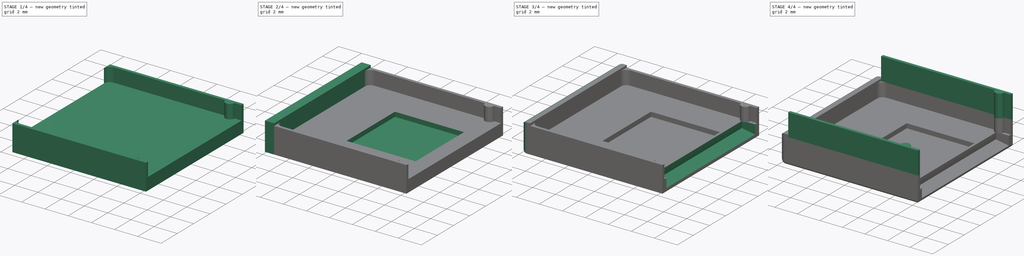
[diagram: build sequence overview — one tinted view per stage of 4, left to right]
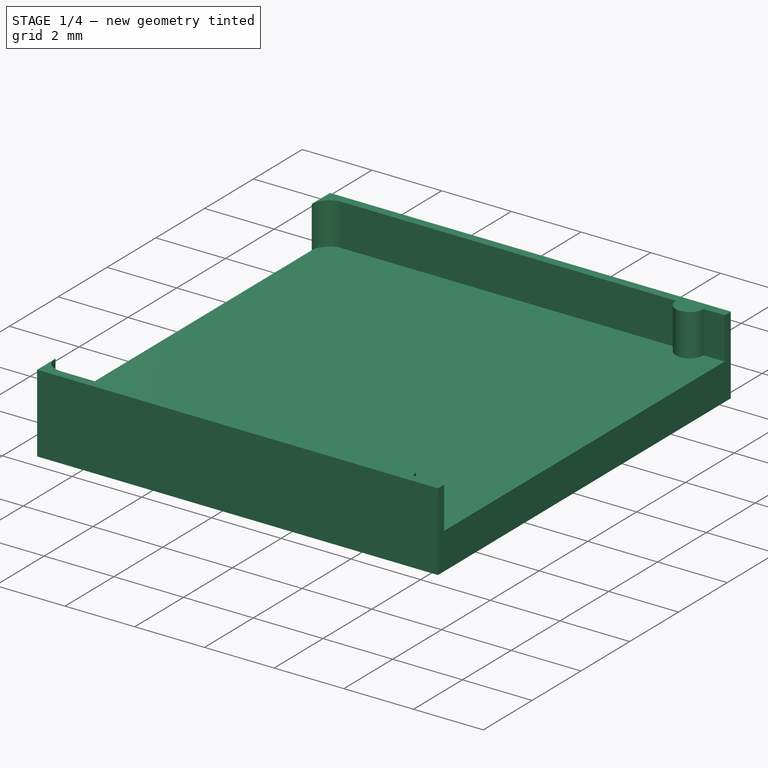
[diagram: stage 1 of 4 — iso view after this stage's code; geometry added in this stage tinted green]
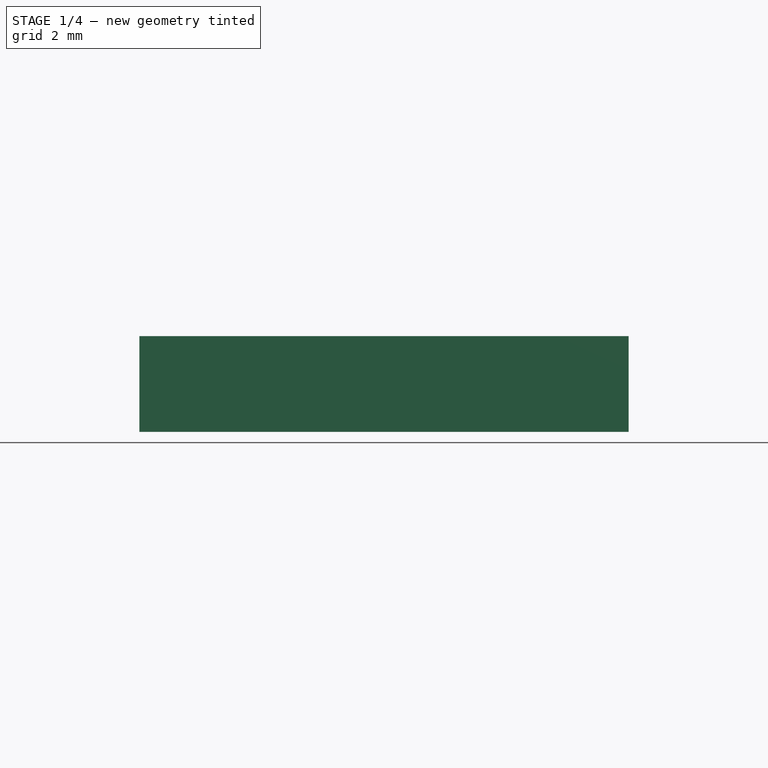
[diagram: stage 1 of 4 — front view after this stage's code; geometry added in this stage tinted green]
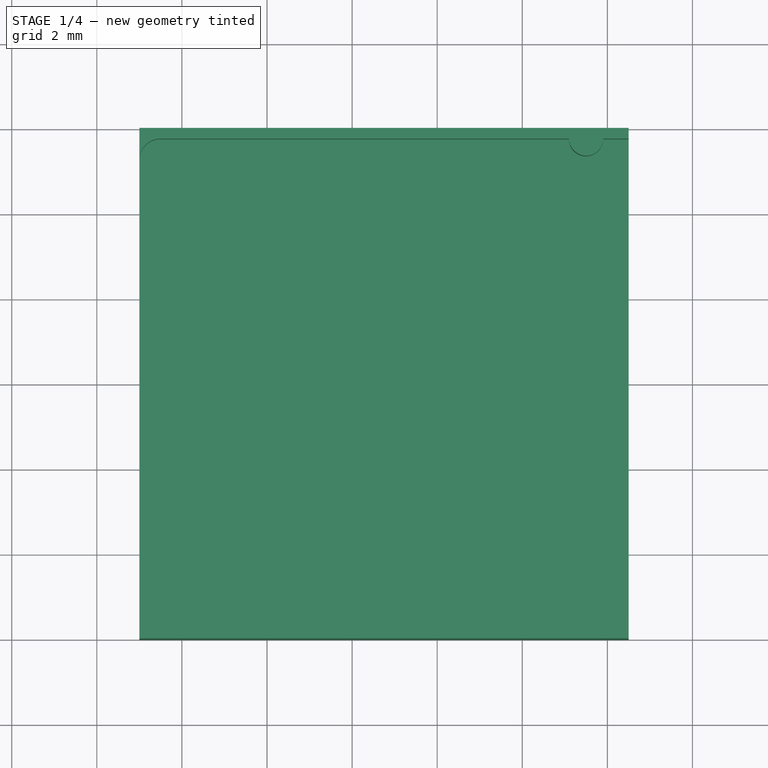
[diagram: stage 1 of 4 — top view after this stage's code; geometry added in this stage tinted green]
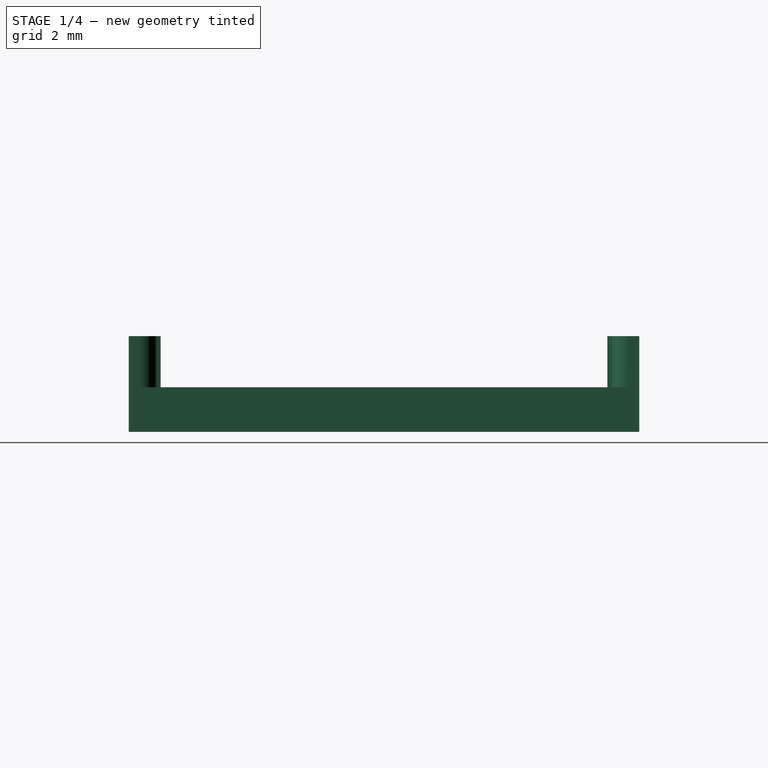
[diagram: stage 1 of 4 — right view after this stage's code; geometry added in this stage tinted green]
FCSTD DOCUMENT  (FreeCAD 0.16R6712 (Git))
Label: tomu_0.3_case
License: All rights reserved
LicenseURL: http://en.wikipedia.org/wiki/All_rights_reserved
objects: Part::Feature×11, Sketcher::SketchObject×8, App::DocumentObjectGroup×3, PartDesign::Pad×3, PartDesign::Pocket×3, PartDesign::Fillet×2, PartDesign::Groove×1
note: 35 computed .brp shape members not serialized (recipe doc carries the construction recipe); baked Part::Feature solids carry a one-line shape summary decoded from their .brp

FEATURE [Part::Feature] Pcb
  Placement = pos=(-23.5,23.5,0) rot=(0,0,1;0rad)
  shape: bbox 13.01 x 11.01 x 0.61 mm, 143 faces (baked)
FEATURE [Sketcher::SketchObject] PCB_Sketch
  sketch-geometry (141):
    g0: LineSegment StartX=3.8 StartY=-5.5 StartZ=0 EndX=5.5 EndY=-5.5 EndZ=0
    g1: LineSegment StartX=4.1 StartY=5.5 StartZ=0 EndX=5.5 EndY=5.5 EndZ=0
    g2: LineSegment StartX=5.9 StartY=0.85 StartZ=0 EndX=5.9 EndY=-0.85 EndZ=0
    g3: LineSegment StartX=5.1 StartY=0.85 StartZ=0 EndX=5.1 EndY=-0.85 EndZ=0
    g4: LineSegment StartX=-6.5 StartY=5 StartZ=0 EndX=-6.5 EndY=-5 EndZ=0
    g5: LineSegment StartX=2.9 StartY=5.5 StartZ=0 EndX=-6 EndY=5.5 EndZ=0
    g6: LineSegment StartX=-6 StartY=-5.5 StartZ=0 EndX=2.6 EndY=-5.5 EndZ=0
    g7: LineSegment StartX=6.5 StartY=0 StartZ=0 EndX=6.5 EndY=0.13 EndZ=0
    g8: LineSegment StartX=6.5 StartY=0.13 StartZ=0 EndX=6.5 EndY=0.27 EndZ=0
    g9: LineSegment StartX=6.5 StartY=0.27 StartZ=0 EndX=6.5 EndY=0.4 EndZ=0
    g10: LineSegment StartX=6.5 StartY=0.4 StartZ=0 EndX=6.5 EndY=0.54 EndZ=0
    g11: LineSegment StartX=6.5 StartY=0.54 StartZ=0 EndX=6.49 EndY=0.67 EndZ=0
    g12: LineSegment StartX=6.49 StartY=0.67 StartZ=0 EndX=6.49 EndY=0.81 EndZ=0
    g13: LineSegment StartX=6.49 StartY=0.81 StartZ=0 EndX=6.49 EndY=0.94 EndZ=0
    g14: LineSegment StartX=6.49 StartY=0.94 StartZ=0 EndX=6.48 EndY=1.07 EndZ=0
    g15: LineSegment StartX=6.48 StartY=1.07 StartZ=0 EndX=6.48 EndY=1.21 EndZ=0
    g16: LineSegment StartX=6.48 StartY=1.21 StartZ=0 EndX=6.47 EndY=1.34 EndZ=0
    g17: LineSegment StartX=6.47 StartY=1.34 StartZ=0 EndX=6.46 EndY=1.47 EndZ=0
    g18: LineSegment StartX=6.46 StartY=1.47 StartZ=0 EndX=6.46 EndY=1.6 EndZ=0
    g19: LineSegment StartX=6.46 StartY=1.6 StartZ=0 EndX=6.45 EndY=1.73 EndZ=0
    g20: LineSegment StartX=6.45 StartY=1.73 StartZ=0 EndX=6.44 EndY=1.85 EndZ=0
    g21: LineSegment StartX=6.44 StartY=1.85 StartZ=0 EndX=6.43 EndY=1.98 EndZ=0
    g22: LineSegment StartX=6.43 StartY=1.98 StartZ=0 EndX=6.42 EndY=2.1 EndZ=0
    g23: LineSegment StartX=6.42 StartY=2.1 StartZ=0 EndX=6.41 EndY=2.23 EndZ=0
    g24: LineSegment StartX=6.41 StartY=2.23 StartZ=0 EndX=6.4 EndY=2.35 EndZ=0
    g25: LineSegment StartX=6.4 StartY=2.35 StartZ=0 EndX=6.39 EndY=2.47 EndZ=0
    g26: LineSegment StartX=6.39 StartY=2.47 StartZ=0 EndX=6.38 EndY=2.59 EndZ=0
    g27: LineSegment StartX=6.38 StartY=2.59 StartZ=0 EndX=6.37 EndY=2.71 EndZ=0
    g28: LineSegment StartX=6.37 StartY=2.71 StartZ=0 EndX=6.36 EndY=2.83 EndZ=0
    g29: LineSegment StartX=6.36 StartY=2.83 StartZ=0 EndX=6.34 EndY=2.94 EndZ=0
    g30: LineSegment StartX=6.34 StartY=2.94 StartZ=0 EndX=6.33 EndY=3.06 EndZ=0
    g31: LineSegment StartX=6.33 StartY=3.06 StartZ=0 EndX=6.32 EndY=3.17 EndZ=0
    g32: LineSegment StartX=6.32 StartY=3.17 StartZ=0 EndX=6.3 EndY=3.28 EndZ=0
    g33: LineSegment StartX=6.3 StartY=3.28 StartZ=0 EndX=6.29 EndY=3.38 EndZ=0
    g34: LineSegment StartX=6.29 StartY=3.38 StartZ=0 EndX=6.27 EndY=3.49 EndZ=0
    g35: LineSegment StartX=6.27 StartY=3.49 StartZ=0 EndX=6.26 EndY=3.59 EndZ=0
    g36: LineSegment StartX=6.26 StartY=3.59 StartZ=0 EndX=6.24 EndY=3.69 EndZ=0
    g37: LineSegment StartX=6.24 StartY=3.69 StartZ=0 EndX=6.22 EndY=3.79 EndZ=0
    g38: LineSegment StartX=6.22 StartY=3.79 StartZ=0 EndX=6.21 EndY=3.89 EndZ=0
    g39: LineSegment StartX=6.21 StartY=3.89 StartZ=0 EndX=6.19 EndY=3.98 EndZ=0
    g40: LineSegment StartX=6.19 StartY=3.98 StartZ=0 EndX=6.17 EndY=4.08 EndZ=0
    g41: LineSegment StartX=6.17 StartY=4.08 StartZ=0 EndX=6.15 EndY=4.16 EndZ=0
    g42: LineSegment StartX=6.15 StartY=4.16 StartZ=0 EndX=6.13 EndY=4.25 EndZ=0
    g43: LineSegment StartX=6.13 StartY=4.25 StartZ=0 EndX=6.12 EndY=4.34 EndZ=0
    g44: LineSegment StartX=6.12 StartY=4.34 StartZ=0 EndX=6.1 EndY=4.42 EndZ=0
    g45: LineSegment StartX=6.1 StartY=4.42 StartZ=0 EndX=6.08 EndY=4.5 EndZ=0
    g46: LineSegment StartX=6.08 StartY=4.5 StartZ=0 EndX=6.06 EndY=4.57 EndZ=0
    g47: LineSegment StartX=6.06 StartY=4.57 StartZ=0 EndX=6.03 EndY=4.65 EndZ=0
    g48: LineSegment StartX=6.03 StartY=4.65 StartZ=0 EndX=6.01 EndY=4.72 EndZ=0
    g49: LineSegment StartX=6.01 StartY=4.72 StartZ=0 EndX=5.99 EndY=4.79 EndZ=0
    g50: LineSegment StartX=5.99 StartY=4.79 StartZ=0 EndX=5.97 EndY=4.85 EndZ=0
    g51: LineSegment StartX=5.97 StartY=4.85 StartZ=0 EndX=5.95 EndY=4.91 EndZ=0
    g52: LineSegment StartX=5.95 StartY=4.91 StartZ=0 EndX=5.93 EndY=4.97 EndZ=0
    g53: LineSegment StartX=5.93 StartY=4.97 StartZ=0 EndX=5.91 EndY=5.03 EndZ=0
    g54: LineSegment StartX=5.91 StartY=5.03 StartZ=0 EndX=5.88 EndY=5.08 EndZ=0
    g55: LineSegment StartX=5.88 StartY=5.08 StartZ=0 EndX=5.86 EndY=5.13 EndZ=0
    g56: LineSegment StartX=5.86 StartY=5.13 StartZ=0 EndX=5.84 EndY=5.18 EndZ=0
    g57: LineSegment StartX=5.84 StartY=5.18 StartZ=0 EndX=5.81 EndY=5.22 EndZ=0
    g58: LineSegment StartX=5.81 StartY=5.22 StartZ=0 EndX=5.79 EndY=5.26 EndZ=0
    g59: LineSegment StartX=5.79 StartY=5.26 StartZ=0 EndX=5.77 EndY=5.3 EndZ=0
    g60: LineSegment StartX=5.77 StartY=5.3 StartZ=0 EndX=5.74 EndY=5.34 EndZ=0
    g61: LineSegment StartX=5.74 StartY=5.34 StartZ=0 EndX=5.72 EndY=5.37 EndZ=0
    g62: LineSegment StartX=5.72 StartY=5.37 StartZ=0 EndX=5.7 EndY=5.39 EndZ=0
    g63: LineSegment StartX=5.7 StartY=5.39 StartZ=0 EndX=5.67 EndY=5.42 EndZ=0
    g64: LineSegment StartX=5.67 StartY=5.42 StartZ=0 EndX=5.65 EndY=5.44 EndZ=0
    g65: LineSegment StartX=5.65 StartY=5.44 StartZ=0 EndX=5.62 EndY=5.46 EndZ=0
    g66: LineSegment StartX=5.62 StartY=5.46 StartZ=0 EndX=5.6 EndY=5.47 EndZ=0
    g67: LineSegment StartX=5.6 StartY=5.47 StartZ=0 EndX=5.57 EndY=5.49 EndZ=0
    g68: LineSegment StartX=5.57 StartY=5.49 StartZ=0 EndX=5.55 EndY=5.49 EndZ=0
    g69: LineSegment StartX=5.55 StartY=5.49 StartZ=0 EndX=5.52 EndY=5.5 EndZ=0
    g70: LineSegment StartX=5.52 StartY=5.5 StartZ=0 EndX=5.5 EndY=5.5 EndZ=0
    g71: LineSegment StartX=5.5 StartY=-5.5 StartZ=0 EndX=5.52 EndY=-5.5 EndZ=0
    g72: LineSegment StartX=5.52 StartY=-5.5 StartZ=0 EndX=5.55 EndY=-5.49 EndZ=0
    g73: LineSegment StartX=5.55 StartY=-5.49 StartZ=0 EndX=5.57 EndY=-5.49 EndZ=0
    g74: LineSegment StartX=5.57 StartY=-5.49 StartZ=0 EndX=5.6 EndY=-5.47 EndZ=0
    g75: LineSegment StartX=5.6 StartY=-5.47 StartZ=0 EndX=5.62 EndY=-5.46 EndZ=0
    g76: LineSegment StartX=5.62 StartY=-5.46 StartZ=0 EndX=5.65 EndY=-5.44 EndZ=0
    g77: LineSegment StartX=5.65 StartY=-5.44 StartZ=0 EndX=5.67 EndY=-5.42 EndZ=0
    g78: LineSegment StartX=5.67 StartY=-5.42 StartZ=0 EndX=5.7 EndY=-5.39 EndZ=0
    g79: LineSegment StartX=5.7 StartY=-5.39 StartZ=0 EndX=5.72 EndY=-5.37 EndZ=0
    g80: LineSegment StartX=5.72 StartY=-5.37 StartZ=0 EndX=5.74 EndY=-5.34 EndZ=0
    g81: LineSegment StartX=5.74 StartY=-5.34 StartZ=0 EndX=5.77 EndY=-5.3 EndZ=0
    g82: LineSegment StartX=5.77 StartY=-5.3 StartZ=0 EndX=5.79 EndY=-5.26 EndZ=0
    g83: LineSegment StartX=5.79 StartY=-5.26 StartZ=0 EndX=5.81 EndY=-5.22 EndZ=0
    g84: LineSegment StartX=5.81 StartY=-5.22 StartZ=0 EndX=5.84 EndY=-5.18 EndZ=0
    g85: LineSegment StartX=5.84 StartY=-5.18 StartZ=0 EndX=5.86 EndY=-5.13 EndZ=0
    g86: LineSegment StartX=5.86 StartY=-5.13 StartZ=0 EndX=5.88 EndY=-5.08 EndZ=0
    g87: LineSegment StartX=5.88 StartY=-5.08 StartZ=0 EndX=5.91 EndY=-5.03 EndZ=0
    g88: LineSegment StartX=5.91 StartY=-5.03 StartZ=0 EndX=5.93 EndY=-4.97 EndZ=0
    g89: LineSegment StartX=5.93 StartY=-4.97 StartZ=0 EndX=5.95 EndY=-4.91 EndZ=0
    g90: LineSegment StartX=5.95 StartY=-4.91 StartZ=0 EndX=5.97 EndY=-4.85 EndZ=0
    g91: LineSegment StartX=5.97 StartY=-4.85 StartZ=0 EndX=5.99 EndY=-4.79 EndZ=0
    g92: LineSegment StartX=5.99 StartY=-4.79 StartZ=0 EndX=6.01 EndY=-4.72 EndZ=0
    g93: LineSegment StartX=6.01 StartY=-4.72 StartZ=0 EndX=6.03 EndY=-4.65 EndZ=0
    g94: LineSegment StartX=6.03 StartY=-4.65 StartZ=0 EndX=6.06 EndY=-4.57 EndZ=0
    g95: LineSegment StartX=6.06 StartY=-4.57 StartZ=0 EndX=6.08 EndY=-4.5 EndZ=0
    g96: LineSegment StartX=6.08 StartY=-4.5 StartZ=0 EndX=6.1 EndY=-4.42 EndZ=0
    g97: LineSegment StartX=6.1 StartY=-4.42 StartZ=0 EndX=6.12 EndY=-4.34 EndZ=0
    g98: LineSegment StartX=6.12 StartY=-4.34 StartZ=0 EndX=6.13 EndY=-4.25 EndZ=0
    g99: LineSegment StartX=6.13 StartY=-4.25 StartZ=0 EndX=6.15 EndY=-4.16 EndZ=0
    g100: LineSegment StartX=6.15 StartY=-4.16 StartZ=0 EndX=6.17 EndY=-4.08 EndZ=0
    g101: LineSegment StartX=6.17 StartY=-4.08 StartZ=0 EndX=6.19 EndY=-3.98 EndZ=0
    g102: LineSegment StartX=6.19 StartY=-3.98 StartZ=0 EndX=6.21 EndY=-3.89 EndZ=0
    g103: LineSegment StartX=6.21 StartY=-3.89 StartZ=0 EndX=6.22 EndY=-3.79 EndZ=0
    g104: LineSegment StartX=6.22 StartY=-3.79 StartZ=0 EndX=6.24 EndY=-3.69 EndZ=0
    g105: LineSegment StartX=6.24 StartY=-3.69 StartZ=0 EndX=6.26 EndY=-3.59 EndZ=0
    g106: LineSegment StartX=6.26 StartY=-3.59 StartZ=0 EndX=6.27 EndY=-3.49 EndZ=0
    g107: LineSegment StartX=6.27 StartY=-3.49 StartZ=0 EndX=6.29 EndY=-3.38 EndZ=0
    g108: LineSegment StartX=6.29 StartY=-3.38 StartZ=0 EndX=6.3 EndY=-3.28 EndZ=0
    g109: LineSegment StartX=6.3 StartY=-3.28 StartZ=0 EndX=6.32 EndY=-3.17 EndZ=0
    g110: LineSegment StartX=6.32 StartY=-3.17 StartZ=0 EndX=6.33 EndY=-3.06 EndZ=0
    g111: LineSegment StartX=6.33 StartY=-3.06 StartZ=0 EndX=6.34 EndY=-2.94 EndZ=0
    g112: LineSegment StartX=6.34 StartY=-2.94 StartZ=0 EndX=6.36 EndY=-2.83 EndZ=0
    g113: LineSegment StartX=6.36 StartY=-2.83 StartZ=0 EndX=6.37 EndY=-2.71 EndZ=0
    g114: LineSegment StartX=6.37 StartY=-2.71 StartZ=0 EndX=6.38 EndY=-2.59 EndZ=0
    g115: LineSegment StartX=6.38 StartY=-2.59 StartZ=0 EndX=6.39 EndY=-2.47 EndZ=0
    g116: LineSegment StartX=6.39 StartY=-2.47 StartZ=0 EndX=6.4 EndY=-2.35 EndZ=0
    g117: LineSegment StartX=6.4 StartY=-2.35 StartZ=0 EndX=6.41 EndY=-2.23 EndZ=0
    g118: LineSegment StartX=6.41 StartY=-2.23 StartZ=0 EndX=6.42 EndY=-2.1 EndZ=0
    g119: LineSegment StartX=6.42 StartY=-2.1 StartZ=0 EndX=6.43 EndY=-1.98 EndZ=0
    g120: LineSegment StartX=6.43 StartY=-1.98 StartZ=0 EndX=6.44 EndY=-1.85 EndZ=0
    g121: LineSegment StartX=6.44 StartY=-1.85 StartZ=0 EndX=6.45 EndY=-1.73 EndZ=0
    g122: LineSegment StartX=6.45 StartY=-1.73 StartZ=0 EndX=6.46 EndY=-1.6 EndZ=0
    g123: LineSegment StartX=6.46 StartY=-1.6 StartZ=0 EndX=6.46 EndY=-1.47 EndZ=0
    g124: LineSegment StartX=6.46 StartY=-1.47 StartZ=0 EndX=6.47 EndY=-1.34 EndZ=0
    g125: LineSegment StartX=6.47 StartY=-1.34 StartZ=0 EndX=6.48 EndY=-1.21 EndZ=0
    g126: LineSegment StartX=6.48 StartY=-1.21 StartZ=0 EndX=6.48 EndY=-1.07 EndZ=0
    g127: LineSegment StartX=6.48 StartY=-1.07 StartZ=0 EndX=6.49 EndY=-0.94 EndZ=0
    g128: LineSegment StartX=6.49 StartY=-0.94 StartZ=0 EndX=6.49 EndY=-0.81 EndZ=0
    g129: LineSegment StartX=6.49 StartY=-0.81 StartZ=0 EndX=6.49 EndY=-0.67 EndZ=0
    g130: LineSegment StartX=6.49 StartY=-0.67 StartZ=0 EndX=6.5 EndY=-0.54 EndZ=0
    g131: LineSegment StartX=6.5 StartY=-0.54 StartZ=0 EndX=6.5 EndY=-0.4 EndZ=0
    g132: LineSegment StartX=6.5 StartY=-0.4 StartZ=0 EndX=6.5 EndY=-0.27 EndZ=0
    g133: LineSegment StartX=6.5 StartY=-0.27 StartZ=0 EndX=6.5 EndY=-0.13 EndZ=0
    g134: LineSegment StartX=6.5 StartY=-0.13 StartZ=0 EndX=6.5 EndY=0 EndZ=0
    g135: ArcOfCircle CenterX=3.2 CenterY=-5.5 CenterZ=0 NormalX=0 NormalY=0 NormalZ=1 Radius=0.6 StartAngle=0 EndAngle=3.14159
    g136: ArcOfCircle CenterX=3.5 CenterY=5.5 CenterZ=0 NormalX=0 NormalY=0 NormalZ=1 Radius=0.6 StartAngle=3.14159 EndAngle=6.28319
    g137: ArcOfCircle CenterX=5.5 CenterY=-0.85 CenterZ=0 NormalX=0 NormalY=0 NormalZ=1 Radius=0.4 StartAngle=3.14159 EndAngle=6.28319
    g138: ArcOfCircle CenterX=5.5 CenterY=0.85 CenterZ=0 NormalX=0 NormalY=0 NormalZ=1 Radius=0.4 StartAngle=0 EndAngle=3.14159
    g139: ArcOfCircle CenterX=-6 CenterY=5 CenterZ=0 NormalX=0 NormalY=0 NormalZ=1 Radius=0.5 StartAngle=1.5708 EndAngle=3.14159
    g140: ArcOfCircle CenterX=-6 CenterY=-5 CenterZ=0 NormalX=0 NormalY=0 NormalZ=1 Radius=0.5 StartAngle=3.14159 EndAngle=4.71239
  constraints (172):
    c: Horizontal(g0)
    c: Coincident(g0,g71)
    c: Coincident(g0,g135)
    c: Horizontal(g1)
    c: Coincident(g1,g70)
    c: Coincident(g1,g136)
    c: Vertical(g2)
    c: Coincident(g2,g137)
    c: Coincident(g2,g138)
    c: Vertical(g3)
    c: Coincident(g3,g137)
    c: Coincident(g3,g138)
    c: Vertical(g4)
    c: Coincident(g4,g139)
    c: Coincident(g4,g140)
    c: Horizontal(g5)
    c: Coincident(g5,g136)
    c: Coincident(g5,g139)
    c: Horizontal(g6)
    c: Coincident(g6,g135)
    c: Coincident(g6,g140)
    c: Vertical(g7)
    c: Coincident(g7,g8)
    c: Coincident(g7,g134)
    c: Vertical(g8)
    c: Coincident(g8,g9)
    c: Vertical(g9)
    c: Coincident(g9,g10)
    c: Vertical(g10)
    c: Coincident(g10,g11)
    c: Coincident(g11,g12)
    c: Vertical(g12)
    c: Coincident(g12,g13)
    c: Vertical(g13)
    c: Coincident(g13,g14)
    c: Coincident(g14,g15)
    c: Vertical(g15)
    c: Coincident(g15,g16)
    c: Coincident(g16,g17)
    c: Coincident(g17,g18)
    c: Vertical(g18)
    c: Coincident(g18,g19)
    c: Coincident(g19,g20)
    c: Coincident(g20,g21)
    c: Coincident(g21,g22)
    c: Coincident(g22,g23)
    c: Coincident(g23,g24)
    c: Coincident(g24,g25)
    c: Coincident(g25,g26)
    c: Coincident(g26,g27)
    c: Coincident(g27,g28)
    c: Coincident(g28,g29)
    c: Coincident(g29,g30)
    c: Coincident(g30,g31)
    c: Coincident(g31,g32)
    c: Coincident(g32,g33)
    c: Coincident(g33,g34)
    c: Coincident(g34,g35)
    c: Coincident(g35,g36)
    c: Coincident(g36,g37)
    c: Coincident(g37,g38)
    c: Coincident(g38,g39)
    c: Coincident(g39,g40)
    c: Coincident(g40,g41)
    c: Coincident(g41,g42)
    c: Coincident(g42,g43)
    c: Coincident(g43,g44)
    c: Coincident(g44,g45)
    c: Coincident(g45,g46)
    c: Coincident(g46,g47)
    c: Coincident(g47,g48)
    c: Coincident(g48,g49)
    c: Coincident(g49,g50)
    c: Coincident(g50,g51)
    c: Coincident(g51,g52)
    c: Coincident(g52,g53)
    c: Coincident(g53,g54)
    c: Coincident(g54,g55)
    c: Coincident(g55,g56)
    c: Coincident(g56,g57)
    c: Coincident(g57,g58)
    c: Coincident(g58,g59)
    c: Coincident(g59,g60)
    c: Coincident(g60,g61)
    c: Coincident(g61,g62)
    c: Coincident(g62,g63)
    c: Coincident(g63,g64)
    c: Coincident(g64,g65)
    c: Coincident(g65,g66)
    c: Coincident(g66,g67)
    c: Coincident(g67,g68)
    c: Horizontal(g68)
    c: Coincident(g68,g69)
    c: Coincident(g69,g70)
    c: Horizontal(g70)
    c: Horizontal(g71)
    c: Coincident(g71,g72)
    c: Coincident(g72,g73)
    c: Horizontal(g73)
    c: Coincident(g73,g74)
    c: Coincident(g74,g75)
    c: Coincident(g75,g76)
    c: Coincident(g76,g77)
    c: Coincident(g77,g78)
    c: Coincident(g78,g79)
    c: Coincident(g79,g80)
    c: Coincident(g80,g81)
    c: Coincident(g81,g82)
    c: Coincident(g82,g83)
    c: Coincident(g83,g84)
    c: Coincident(g84,g85)
    c: Coincident(g85,g86)
    c: Coincident(g86,g87)
    c: Coincident(g87,g88)
    c: Coincident(g88,g89)
    c: Coincident(g89,g90)
    c: Coincident(g90,g91)
    c: Coincident(g91,g92)
    c: Coincident(g92,g93)
    c: Coincident(g93,g94)
    c: Coincident(g94,g95)
    c: Coincident(g95,g96)
    c: Coincident(g96,g97)
    c: Coincident(g97,g98)
    c: Coincident(g98,g99)
    c: Coincident(g99,g100)
    c: Coincident(g100,g101)
    c: Coincident(g101,g102)
    c: Coincident(g102,g103)
    c: Coincident(g103,g104)
    c: Coincident(g104,g105)
    c: Coincident(g105,g106)
    c: Coincident(g106,g107)
    c: Coincident(g107,g108)
    c: Coincident(g108,g109)
    c: Coincident(g109,g110)
    c: Coincident(g110,g111)
    c: Coincident(g111,g112)
    c: Coincident(g112,g113)
    c: Coincident(g113,g114)
    c: Coincident(g114,g115)
    c: Coincident(g115,g116)
    c: Coincident(g116,g117)
    c: Coincident(g117,g118)
    c: Coincident(g118,g119)
    c: Coincident(g119,g120)
    c: Coincident(g120,g121)
    c: Coincident(g121,g122)
    c: Coincident(g122,g123)
    c: Vertical(g123)
    c: Coincident(g123,g124)
    c: Coincident(g124,g125)
    c: Coincident(g125,g126)
    c: Vertical(g126)
    c: Coincident(g126,g127)
    c: Coincident(g127,g128)
    c: Vertical(g128)
    c: Coincident(g128,g129)
    c: Vertical(g129)
    c: Coincident(g129,g130)
    c: Coincident(g130,g131)
    c: Vertical(g131)
    c: Coincident(g131,g132)
    c: Vertical(g132)
    c: Coincident(g132,g133)
    c: Vertical(g133)
    c: Coincident(g133,g134)
    c: Vertical(g134)
    c: Horizontal(g135)
    c: Horizontal(g136)
    c: Horizontal(g137)
    c: Horizontal(g138)
FEATURE [App::DocumentObjectGroup] Board_Geoms
  Group = -> [Pcb,PCB_Sketch]
FEATURE [Part::Feature] Shape  label="R_0402_"
  Placement = pos=(3.8,-1.5,-0.6) rot=(0.707107,0.707107,0;3.14159rad)
  shape: bbox 0.55 x 1.07 x 0.4 mm, 28 faces (baked)
FEATURE [Part::Feature] Shape001  label="User Library-led_0402_"
  Placement = pos=(3.8,3.54,-0.6) rot=(-0.707107,0.707107,0;3.14159rad)
  shape: bbox 0.5 x 1.01 x 0.45 mm, 43 faces (baked)
FEATURE [Part::Feature] Shape002  label="C_0402_"
  Placement = pos=(-4.175,-2.45,-0.6) rot=(1,0,0;3.14159rad)
  shape: bbox 1 x 0.5 x 0.5 mm, 28 faces (baked)
FEATURE [Part::Feature] Shape003  label="C_0402_001"
  Placement = pos=(-4.175,-0.05,-0.6) rot=(0,1,0;3.14159rad)
  shape: bbox 1 x 0.5 x 0.5 mm, 28 faces (baked)
FEATURE [Part::Feature] Shape004  label="C_0402_002"
  Placement = pos=(-4.175,-1.25,-0.6) rot=(0,1,0;3.14159rad)
  shape: bbox 1 x 0.5 x 0.5 mm, 28 faces (baked)
FEATURE [Part::Feature] Shape005  label="User Library-led_0402_001"
  Placement = pos=(3.8,-3.4,-0.6) rot=(0.707107,0.707107,0;3.14159rad)
  shape: bbox 0.5 x 1.01 x 0.45 mm, 43 faces (baked)
FEATURE [Part::Feature] Shape006  label="R_0402_001"
  Placement = pos=(3.8,1.85,-0.6) rot=(0.707107,0.707107,0;3.14159rad)
  shape: bbox 0.55 x 1.07 x 0.4 mm, 28 faces (baked)
FEATURE [Part::Feature] Shape007  label="R_0402_002"
  Placement = pos=(-4,1.2,-0.6) rot=(1,0,0;3.14159rad)
  shape: bbox 1.07 x 0.55 x 0.4 mm, 28 faces (baked)
FEATURE [Part::Feature] Shape008  label="R_0402_003"
  Placement = pos=(-4,2.5,-0.6) rot=(1,0,0;3.14159rad)
  shape: bbox 1.07 x 0.55 x 0.4 mm, 28 faces (baked)
FEATURE [Part::Feature] Shape009  label="QFN-24-1EP_5x5mm_Pitch0.65mm_"
  Placement = pos=(0.075,0.05,-0.6) rot=(0,1,0;3.14159rad)
  shape: bbox 5 x 5 x 0.77 mm, 158 faces (baked)
FEATURE [App::DocumentObjectGroup] Step_Models
  Group = -> [Shape,Shape001,Shape002,Shape003,Shape004,Shape005,Shape006,Shape007,Shape008,Shape009]
FEATURE [Sketcher::SketchObject] Sketch
  sketch-geometry (4):
    g0: LineSegment StartX=-7 StartY=6 StartZ=0 EndX=4.5 EndY=6 EndZ=0
    g1: LineSegment StartX=4.5 StartY=6 StartZ=0 EndX=4.5 EndY=-6 EndZ=0
    g2: LineSegment StartX=4.5 StartY=-6 StartZ=0 EndX=-7 EndY=-6 EndZ=0
    g3: LineSegment StartX=-7 StartY=-6 StartZ=0 EndX=-7 EndY=6 EndZ=0
  constraints (12):
    c: DistanceY(g3,g3) = 12
    c: Coincident(g2,g3)
    c: Coincident(g0,g3)
    c: Parallel(g2,g0)
    c: Coincident(g1,g0)
    c: Coincident(g1,g2)
    c: Perpendicular(g2,g3)
    c: Perpendicular(g1,g2)
    c: DistanceY(g1,g-1) = 6
    c: Horizontal(g0)
    c: DistanceX(g0,g0) = 11.5
    c: DistanceX(g2,g-1) = 7
FEATURE [PartDesign::Pad] Pad
  Length = 2.25
  Length2 = 100
  Reversed = true
  Sketch = -> Sketch
  Type = 0
FEATURE [Sketcher::SketchObject] PCB_Sketch001  label="PCB_Outline"
  Support = -> Pad [Face5]
  sketch-geometry (10):
    g0: LineSegment StartX=3.6 StartY=-5.75 StartZ=0 EndX=4.5 EndY=-5.75 EndZ=0
    g1: LineSegment StartX=3.9 StartY=5.75 StartZ=0 EndX=4.5 EndY=5.75 EndZ=0
    g2: LineSegment StartX=-7 StartY=5.25 StartZ=0 EndX=-7 EndY=-5.25 EndZ=0
    g3: LineSegment StartX=3.1 StartY=5.75 StartZ=0 EndX=-6.5 EndY=5.75 EndZ=0
    g4: LineSegment StartX=-6.5 StartY=-5.75 StartZ=0 EndX=2.8 EndY=-5.75 EndZ=0
    g5: ArcOfCircle CenterX=3.2 CenterY=-5.75 CenterZ=0 NormalX=0 NormalY=0 NormalZ=1 Radius=0.4 StartAngle=0 EndAngle=3.14159
    g6: ArcOfCircle CenterX=3.5 CenterY=5.75 CenterZ=0 NormalX=0 NormalY=0 NormalZ=1 Radius=0.4 StartAngle=3.14159 EndAngle=6.28319
    g7: ArcOfCircle CenterX=-6.5 CenterY=5.25 CenterZ=0 NormalX=0 NormalY=0 NormalZ=1 Radius=0.5 StartAngle=1.5708 EndAngle=3.14159
    g8: ArcOfCircle CenterX=-6.5 CenterY=-5.25 CenterZ=0 NormalX=0 NormalY=0 NormalZ=1 Radius=0.5 StartAngle=3.14159 EndAngle=4.71239
    g9: LineSegment StartX=4.5 StartY=5.75 StartZ=0 EndX=4.5 EndY=-5.75 EndZ=0
  constraints (34):
    c: DistanceX(g1,g1) = 0.6
    c: Coincident(g2,g8)
    c: Coincident(g4,g8)
    c: Coincident(g0,g5)
    c: Coincident(g4,g5)
    c: Coincident(g2,g7)
    c: Coincident(g3,g7)
    c: Coincident(g3,g6)
    c: Coincident(g1,g6)
    c: DistanceX(g3,g3) = 9.6
    c: DistanceX(g4,g4) = 9.3
    c: DistanceX(g0,g0) = 0.9
    c: Horizontal(g3)
    c: Radius(g6) = 0.4
    c: Radius(g5) = 0.4
    c: Angle(g6) = 3.14159
    c: Angle(g5) = 3.14159
    c: Perpendicular(g2,g4)
    c: Angle(g7) = 1.5708
    c: Angle(g8) = 1.5708
    c: Radius(g7) = 0.5
    c: Radius(g8) = 0.5
    c: DistanceY(g4,g2) = 0.5
    c: DistanceX(g2,g3) = 0.5
    c: DistanceY(g1,g3) = 0
    c: DistanceY(g0,g4) = 0
    c: Horizontal(g0)
    c: Horizontal(g1)
    c: Horizontal(g4)
    c: DistanceY(g4,g-1) = 5.75
    c: DistanceX(g4,g-1) = 6.5
    c: Coincident(g9,g0)
    c: Coincident(g1,g9)
    c: DistanceY(g4,g3) = 11.5
FEATURE [PartDesign::Pocket] Pocket
  Length = 1.2
  Sketch = -> PCB_Sketch001
  Type = 0
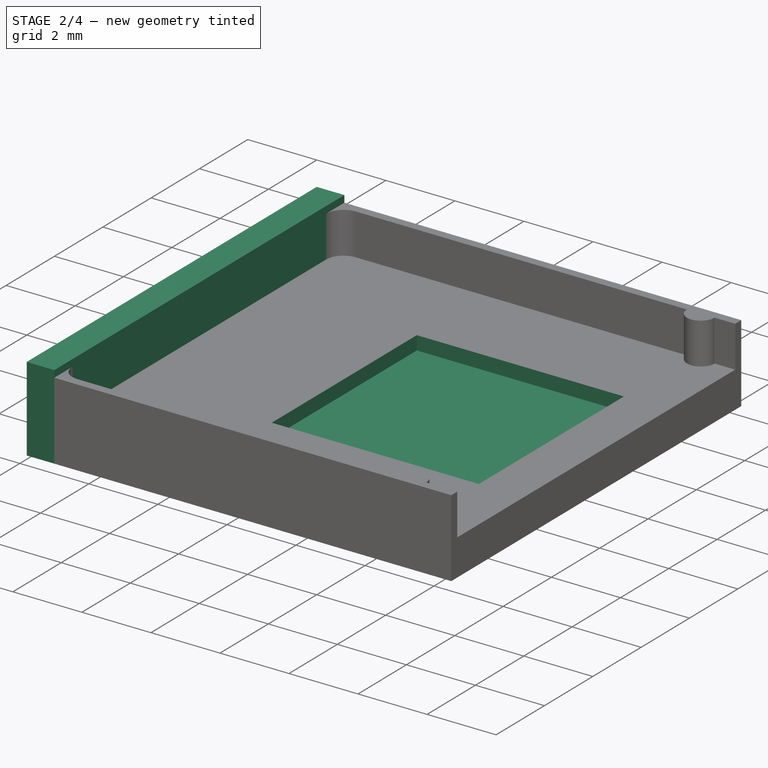
[diagram: stage 2 of 4 — iso view after this stage's code; geometry added in this stage tinted green]
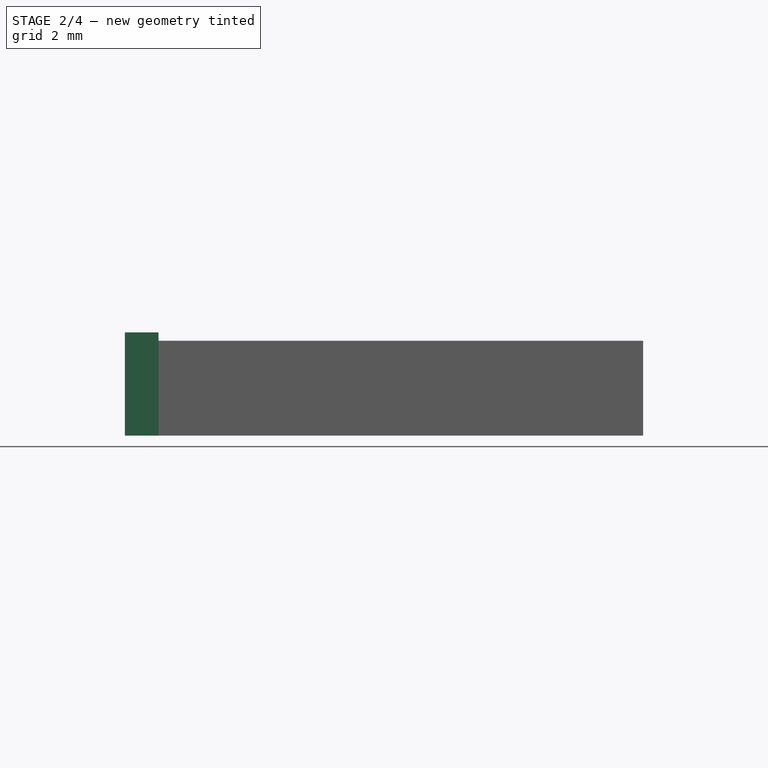
[diagram: stage 2 of 4 — front view after this stage's code; geometry added in this stage tinted green]
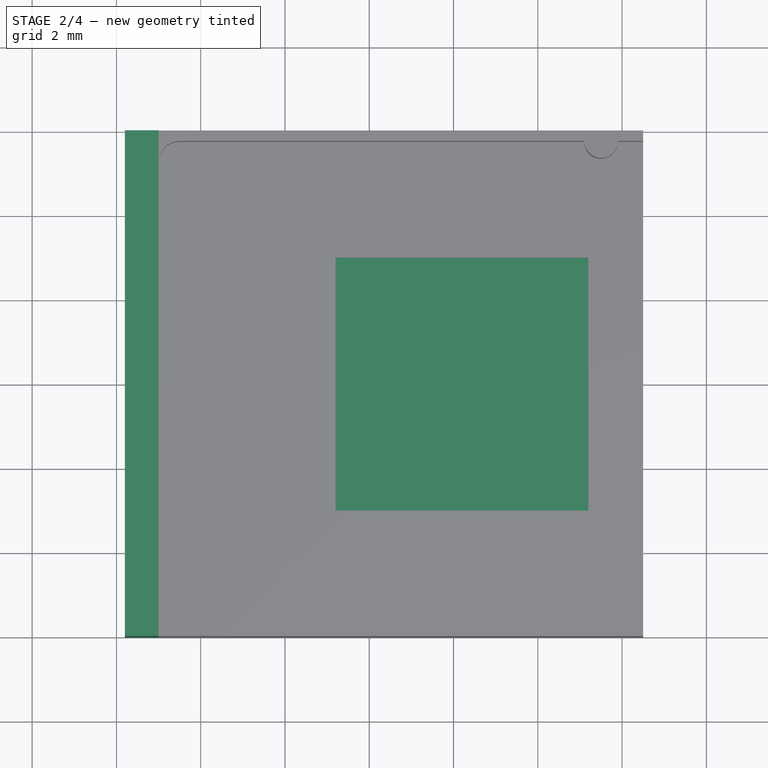
[diagram: stage 2 of 4 — top view after this stage's code; geometry added in this stage tinted green]
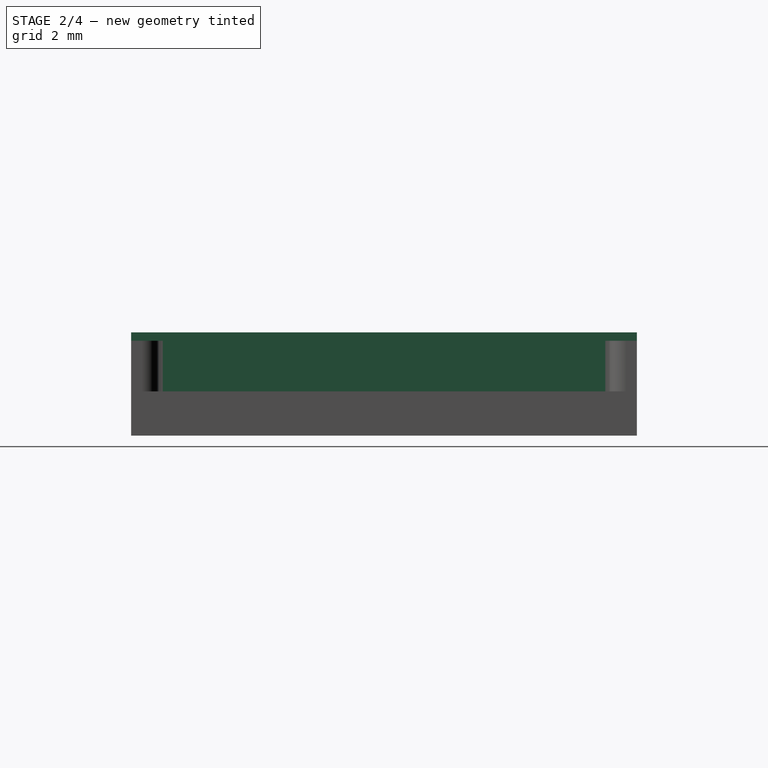
[diagram: stage 2 of 4 — right view after this stage's code; geometry added in this stage tinted green]
FEATURE [Sketcher::SketchObject] Sketch001  label="MCU_Pocket_Sketch"
  Placement = pos=(0,0,-1.2) rot=(0,0,1;0rad)
  Support = -> Pocket [Face8]
  sketch-geometry (4):
    g0: LineSegment StartX=-2.8 StartY=3 StartZ=0 EndX=3.2 EndY=3 EndZ=0
    g1: LineSegment StartX=3.2 StartY=3 StartZ=0 EndX=3.2 EndY=-3 EndZ=0
    g2: LineSegment StartX=3.2 StartY=-3 StartZ=0 EndX=-2.8 EndY=-3 EndZ=0
    g3: LineSegment StartX=-2.8 StartY=-3 StartZ=0 EndX=-2.8 EndY=3 EndZ=0
  constraints (12):
    c: Coincident(g0,g1)
    c: Coincident(g1,g2)
    c: Coincident(g2,g3)
    c: Coincident(g3,g0)
    c: Horizontal(g0)
    c: Horizontal(g2)
    c: Vertical(g1)
    c: Vertical(g3)
    c: DistanceX(g0,g0) = 6
    c: DistanceY(g1,g1) = 6
    c: DistanceX(g-1,g1) = 3.2
    c: DistanceY(g1,g-1) = 3
FEATURE [PartDesign::Pocket] Pocket001  label="MCU_Pocket"
  Length = 0.4
  Sketch = -> Sketch001
  Type = 0
FEATURE [Sketcher::SketchObject] Sketch002  label="Endcap_Sketch"
  ExternalGeometry = -> [Pocket001]
  Placement = pos=(-7,5e-12,0) rot=(-0.57735,0.57735,0.57735;4.18879rad)
  Support = -> Pocket001 [Face2]
  sketch-geometry (4):
    g0: LineSegment StartX=-6 StartY=-2.25 StartZ=0 EndX=6 EndY=-2.25 EndZ=0
    g1: LineSegment StartX=6 StartY=-2.25 StartZ=0 EndX=6 EndY=0.2 EndZ=0
    g2: LineSegment StartX=6 StartY=0.2 StartZ=0 EndX=-6 EndY=0.2 EndZ=0
    g3: LineSegment StartX=-6 StartY=0.2 StartZ=0 EndX=-6 EndY=-2.25 EndZ=0
  constraints (11):
    c: Coincident(g0,g1)
    c: Coincident(g1,g2)
    c: Coincident(g2,g3)
    c: Coincident(g3,g0)
    c: Horizontal(g0)
    c: Horizontal(g2)
    c: Vertical(g1)
    c: Vertical(g3)
    c: Coincident(g0,g-3)
    c: DistanceX(g-4,g1) = 0
    c: DistanceY(g-4,g1) = 0.2
FEATURE [PartDesign::Pad] Pad001  label="Endcap_Pad"
  Length = 0.8
  Length2 = 100
  Sketch = -> Sketch002
  Type = 0
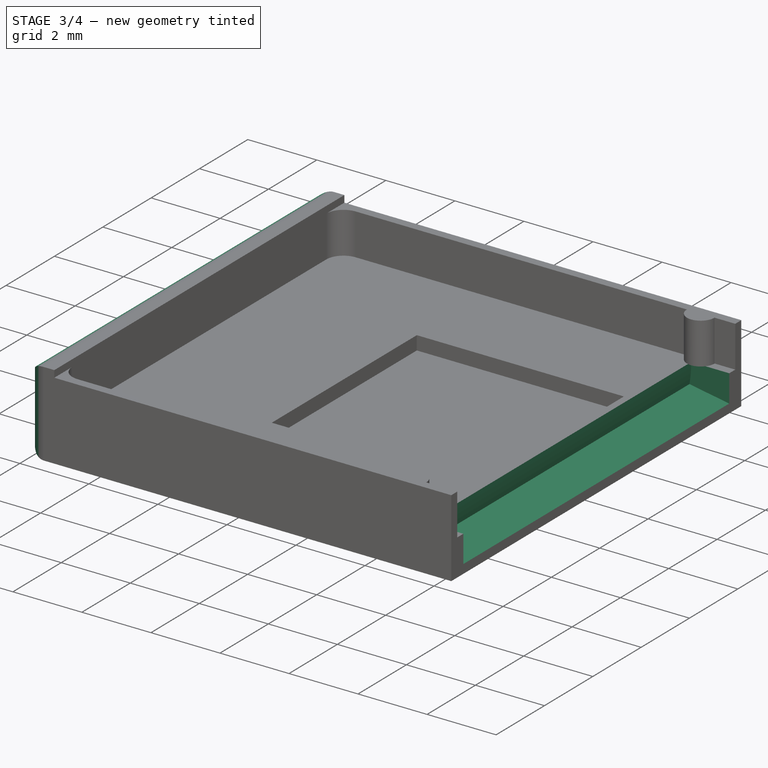
[diagram: stage 3 of 4 — iso view after this stage's code; geometry added in this stage tinted green]
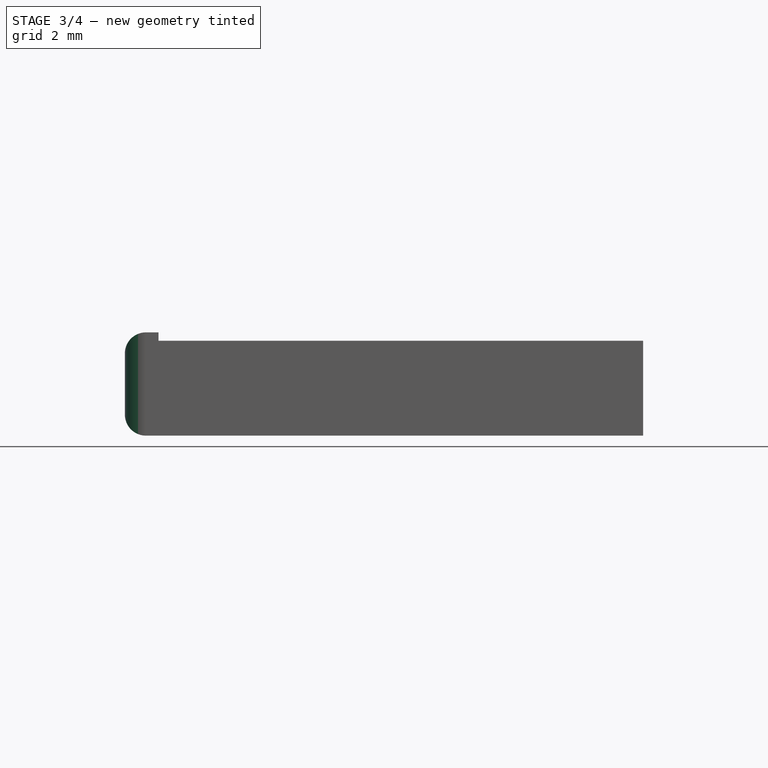
[diagram: stage 3 of 4 — front view after this stage's code; geometry added in this stage tinted green]
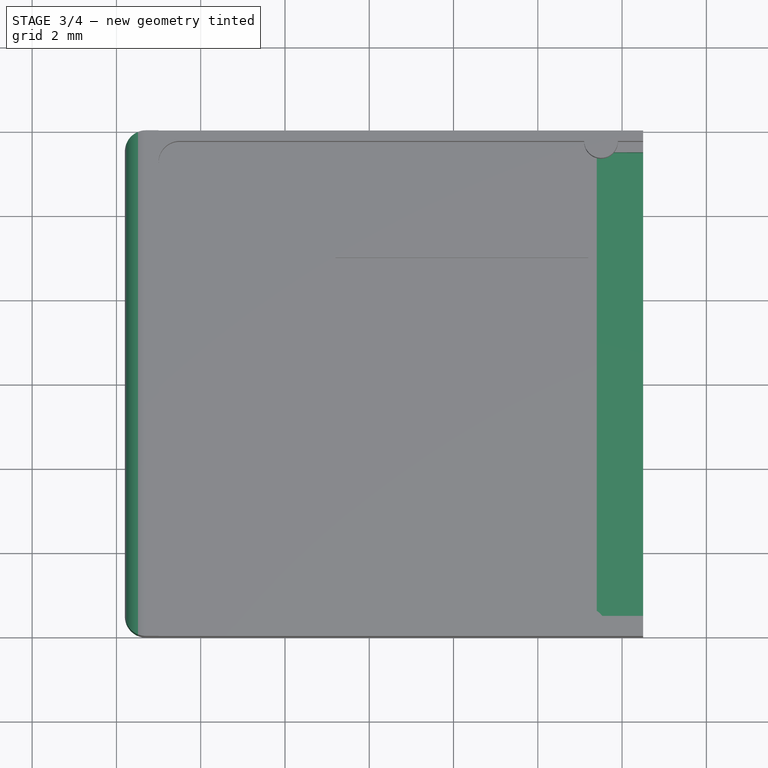
[diagram: stage 3 of 4 — top view after this stage's code; geometry added in this stage tinted green]
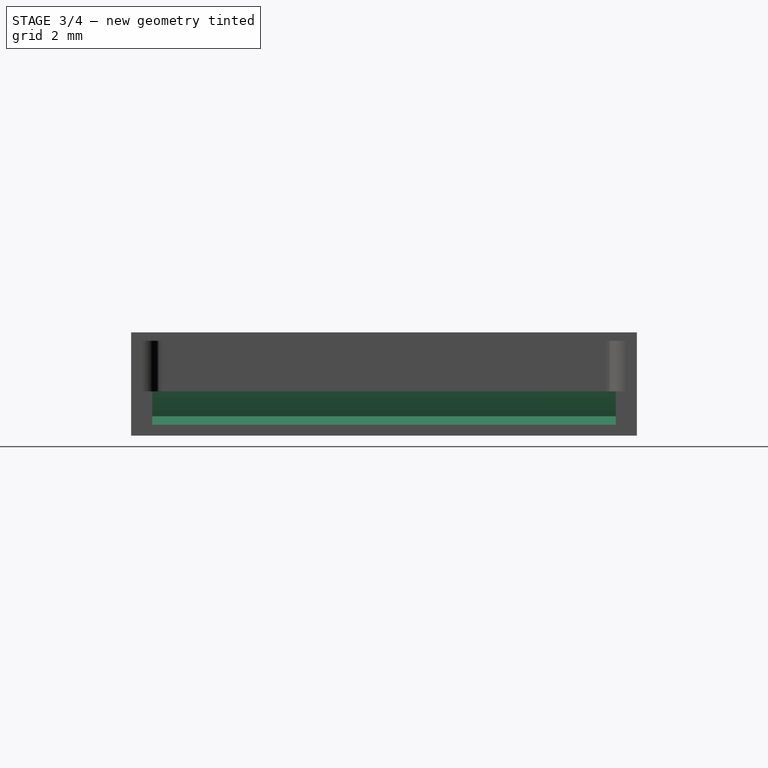
[diagram: stage 3 of 4 — right view after this stage's code; geometry added in this stage tinted green]
FEATURE [App::DocumentObjectGroup] Group
  Group = -> [Pad,Pocket,Pocket001,Pad001]
FEATURE [Sketcher::SketchObject] Sketch003  label="LED flange sketch"
  Placement = pos=(0,0,-1.2) rot=(0,0,1;0rad)
  Support = -> Pad001 [Face4]
  sketch-geometry (4):
    g0: LineSegment StartX=4.6 StartY=5.5 StartZ=0 EndX=3.4 EndY=5.5 EndZ=0
    g1: LineSegment StartX=3.4 StartY=5.5 StartZ=0 EndX=3.4 EndY=-5.5 EndZ=0
    g2: LineSegment StartX=3.4 StartY=-5.5 StartZ=0 EndX=4.6 EndY=-5.5 EndZ=0
    g3: LineSegment StartX=4.6 StartY=-5.5 StartZ=0 EndX=4.6 EndY=5.5 EndZ=0
  constraints (12):
    c: Coincident(g0,g1)
    c: Coincident(g1,g2)
    c: Coincident(g2,g3)
    c: Coincident(g0,g3)
    c: Parallel(g3,g1)
    c: Parallel(g0,g2)
    c: Vertical(g3)
    c: Horizontal(g2)
    c: DistanceX(g-1,g0) = 4.6
    c: DistanceY(g-1,g0) = 5.5
    c: DistanceY(g3,g3) = 11
    c: DistanceX(g0,g0) = 1.2
FEATURE [PartDesign::Groove] Groove
  Angle = 10
  Axis = (0,1,0)
  Base = (0,0,-1.2)
  ReferenceAxis = -> Sketch003 [V_Axis]
  Sketch = -> Sketch003
FEATURE [Sketcher::SketchObject] Sketch004
  Placement = pos=(0,0,-2.25) rot=(1,0,0;3.14159rad)
  Support = -> Groove [Face12]
  sketch-geometry (8):
    g0: LineSegment StartX=-1.34 StartY=4 StartZ=0 EndX=0.66 EndY=4 EndZ=0
    g1: LineSegment StartX=0.66 StartY=4 StartZ=0 EndX=0.66 EndY=1.5 EndZ=0
    g2: LineSegment StartX=0.66 StartY=1.5 StartZ=0 EndX=-1.34 EndY=1.5 EndZ=0
    g3: LineSegment StartX=-1.34 StartY=1.5 StartZ=0 EndX=-1.34 EndY=4 EndZ=0
    g4: LineSegment StartX=-1.34 StartY=-1.5 StartZ=0 EndX=0.66 EndY=-1.5 EndZ=0
    g5: LineSegment StartX=0.66 StartY=-1.5 StartZ=0 EndX=0.66 EndY=-4 EndZ=0
    g6: LineSegment StartX=0.66 StartY=-4 StartZ=0 EndX=-1.34 EndY=-4 EndZ=0
    g7: LineSegment StartX=-1.34 StartY=-4 StartZ=0 EndX=-1.34 EndY=-1.5 EndZ=0
  constraints (24):
    c: Coincident(g0,g1)
    c: Coincident(g1,g2)
    c: Coincident(g2,g3)
    c: Coincident(g3,g0)
    c: Horizontal(g0)
    c: Horizontal(g2)
    c: Vertical(g1)
    c: Vertical(g3)
    c: Coincident(g4,g5)
    c: Coincident(g5,g6)
    c: Coincident(g6,g7)
    c: Coincident(g7,g4)
    c: Horizontal(g4)
    c: Horizontal(g6)
    c: Vertical(g5)
    c: Vertical(g7)
    c: DistanceX(g2,g4) = 0
    c: DistanceX(g1,g4) = 0
    c: DistanceY(g3,g3) = 2.5
    c: Equal(g7,g3)
    c: DistanceX(g0,g0) = 2
    c: DistanceY(g4,g1) = 3
    c: DistanceY(g4,g-1) = 1.5
    c: DistanceX(g-1,g1) = 0.66
FEATURE [PartDesign::Pocket] Pocket002  label="USB connector tabs"
  Length = 0.5
  Sketch = -> Sketch004
  Type = 0
FEATURE [PartDesign::Fillet] Fillet
  Base = -> Pocket002 [Edge78,Edge75,Edge101,Edge96]
  Radius = 0.5
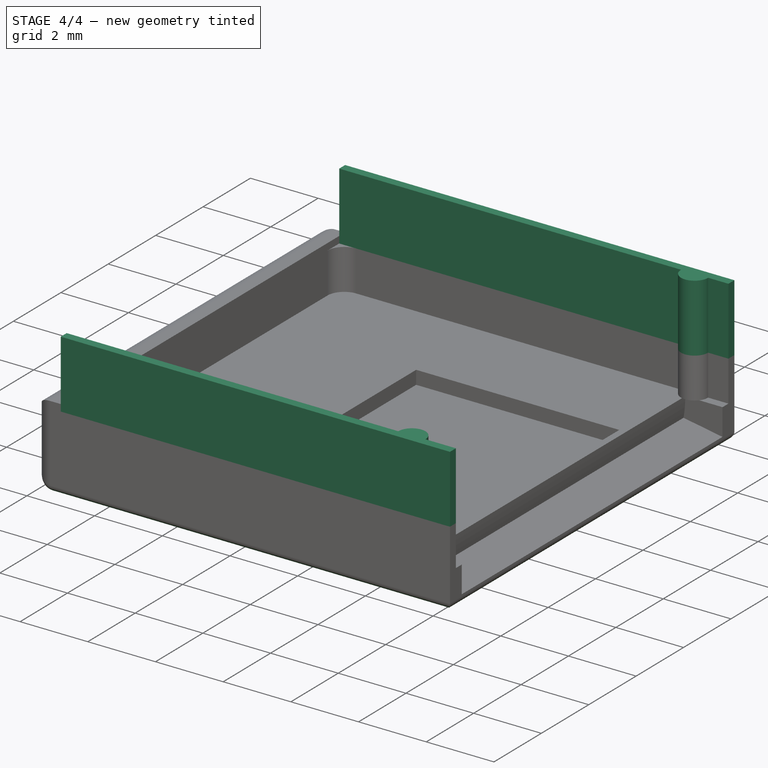
[diagram: stage 4 of 4 — iso view after this stage's code; geometry added in this stage tinted green]
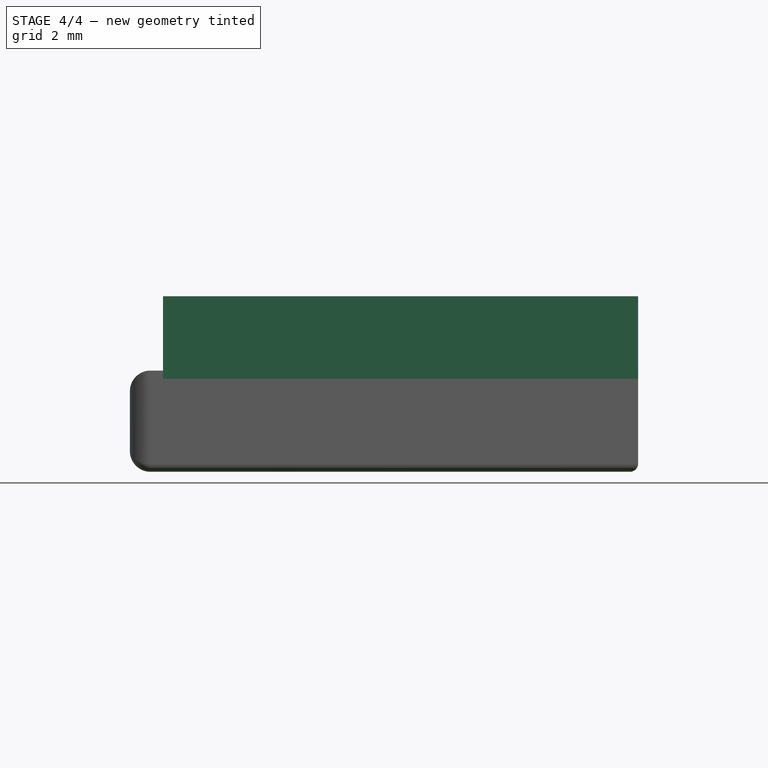
[diagram: stage 4 of 4 — front view after this stage's code; geometry added in this stage tinted green]
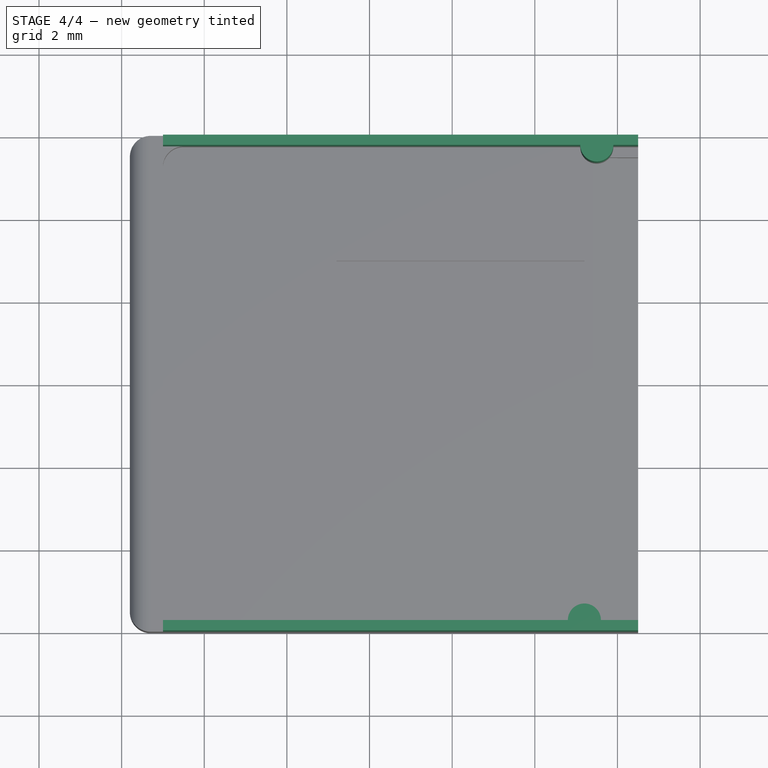
[diagram: stage 4 of 4 — top view after this stage's code; geometry added in this stage tinted green]
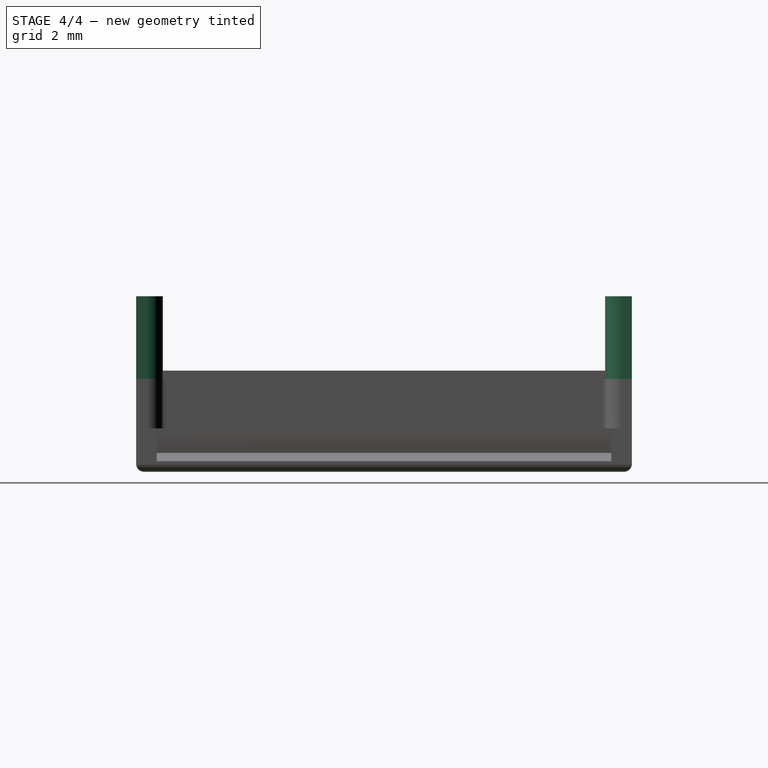
[diagram: stage 4 of 4 — right view after this stage's code; geometry added in this stage tinted green]
FEATURE [PartDesign::Fillet] Fillet001
  Base = -> Fillet [Edge28,Edge8,Edge29,Edge14,Edge30,Edge31,Edge32,Edge33,Edge34,Edge35,Edge36,Edge37]
  Radius = 0.2
FEATURE [Sketcher::SketchObject] Sketch005  label="USB shell tabs"
  ExternalGeometry = -> [Fillet001]
  Support = -> Fillet001 [Face14]
  sketch-geometry (14):
    g0: LineSegment StartX=-7 StartY=6 StartZ=0 EndX=4.5 EndY=6 EndZ=0
    g1: LineSegment StartX=4.5 StartY=5.75 StartZ=0 EndX=4.5 EndY=6 EndZ=0
    g2: LineSegment StartX=4.5 StartY=5.75 StartZ=0 EndX=3.9 EndY=5.75 EndZ=0
    g3: LineSegment StartX=3.1 StartY=5.75 StartZ=0 EndX=-6.5 EndY=5.75 EndZ=0
    g4: LineSegment StartX=-7 StartY=5.75 StartZ=0 EndX=-7 EndY=6 EndZ=0
    g5: LineSegment StartX=4.5 StartY=-6 StartZ=0 EndX=-7 EndY=-6 EndZ=0
    g6: LineSegment StartX=-7 StartY=-6 StartZ=0 EndX=-7 EndY=-5.75 EndZ=0
    g7: LineSegment StartX=-6.5 StartY=-5.75 StartZ=0 EndX=2.8 EndY=-5.75 EndZ=0
    g8: LineSegment StartX=3.6 StartY=-5.75 StartZ=0 EndX=4.5 EndY=-5.75 EndZ=0
    g9: LineSegment StartX=4.5 StartY=-5.75 StartZ=0 EndX=4.5 EndY=-6 EndZ=0
    g10: ArcOfCircle CenterX=3.2 CenterY=-5.75 CenterZ=0 NormalX=0 NormalY=0 NormalZ=1 Radius=0.4 StartAngle=0 EndAngle=3.14159
    g11: ArcOfCircle CenterX=3.5 CenterY=5.75 CenterZ=0 NormalX=0 NormalY=0 NormalZ=1 Radius=0.4 StartAngle=3.14159 EndAngle=6.28319
    g12: LineSegment StartX=-6.5 StartY=5.75 StartZ=0 EndX=-7 EndY=5.75 EndZ=0
    g13: LineSegment StartX=-7 StartY=-5.75 StartZ=0 EndX=-6.5 EndY=-5.75 EndZ=0
  constraints (32):
    c: Coincident(g7,g-18)
    c: Coincident(g10,g7)
    c: Coincident(g10,g-17)
    c: Coincident(g10,g-9)
    c: Coincident(g10,g8)
    c: Coincident(g8,g-17)
    c: Coincident(g9,g8)
    c: Coincident(g9,g-16)
    c: Coincident(g5,g9)
    c: Coincident(g5,g-15)
    c: Coincident(g6,g5)
    c: Coincident(g0,g4)
    c: Coincident(g0,g-13)
    c: Coincident(g3,g11)
    c: Coincident(g3,g-14)
    c: Coincident(g-11,g2)
    c: Coincident(g2,g11)
    c: Coincident(g1,g2)
    c: Coincident(g1,g-12)
    c: Coincident(g0,g1)
    c: Coincident(g0,g-13)
    c: Coincident(g-10,g11)
    c: Coincident(g3,g12)
    c: DistanceX(g12,g0) = 0
    c: DistanceY(g12,g3) = 0
    c: Coincident(g13,g7)
    c: Coincident(g-18,g7)
    c: DistanceY(g7,g13) = 0
    c: DistanceX(g13,g5) = 0
    c: Coincident(g3,g-14)
    c: Coincident(g4,g12)
    c: Coincident(g13,g6)
FEATURE [PartDesign::Pad] Pad002
  Length = 2
  Length2 = 100
  Sketch = -> Sketch005
  Type = 0
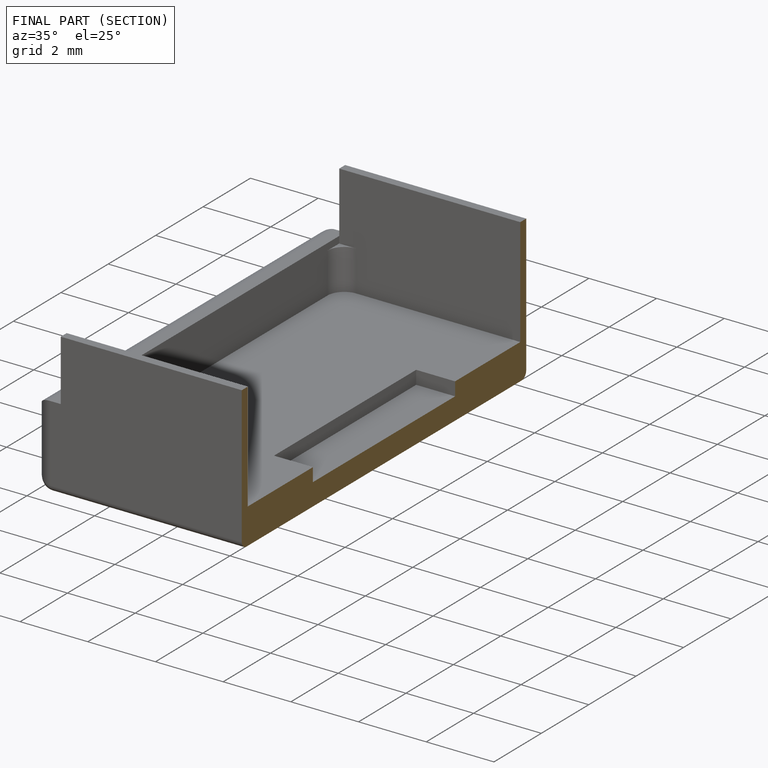
[diagram: finished part — half-section view (interior)]
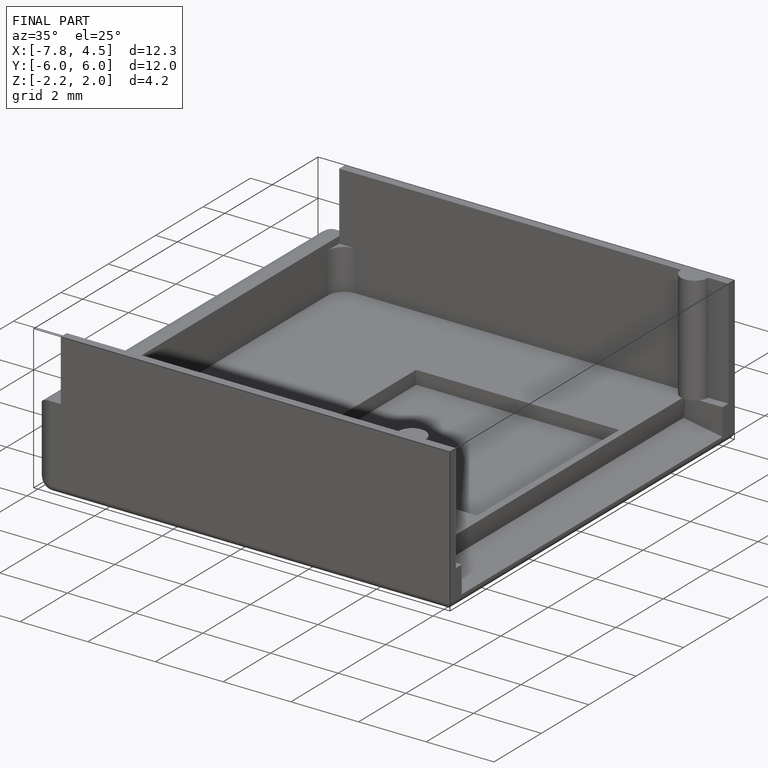
[diagram: finished part — iso view with bounding-box wireframe]
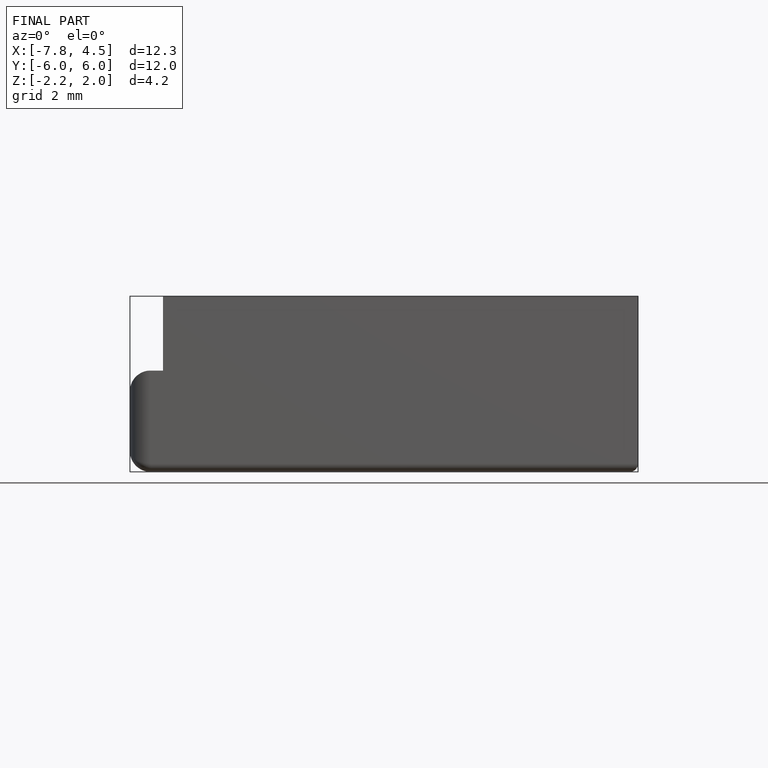
[diagram: finished part — front view with bounding-box wireframe]
